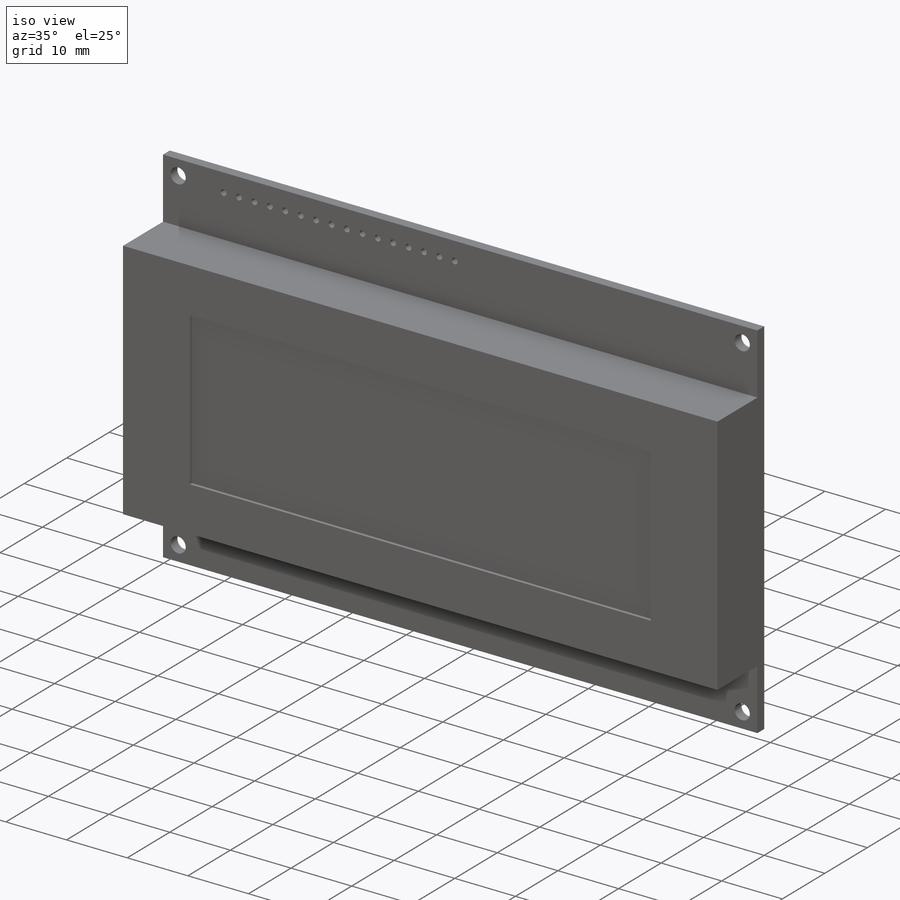
[diagram: iso view]
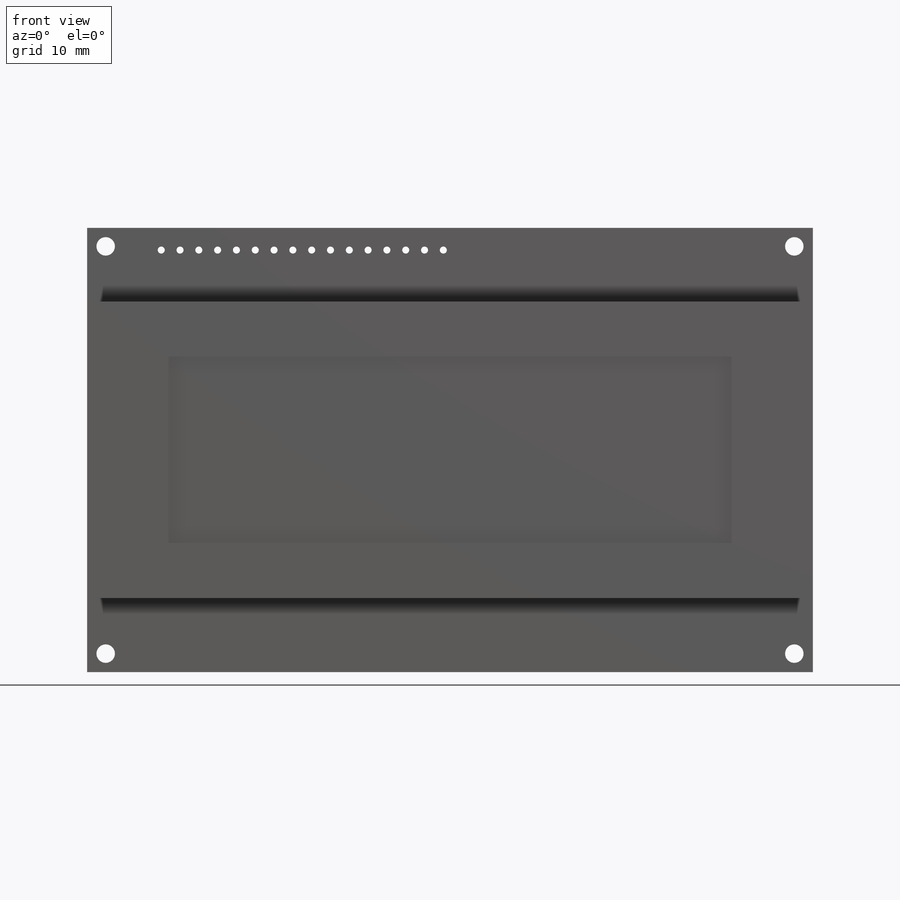
[diagram: front view]
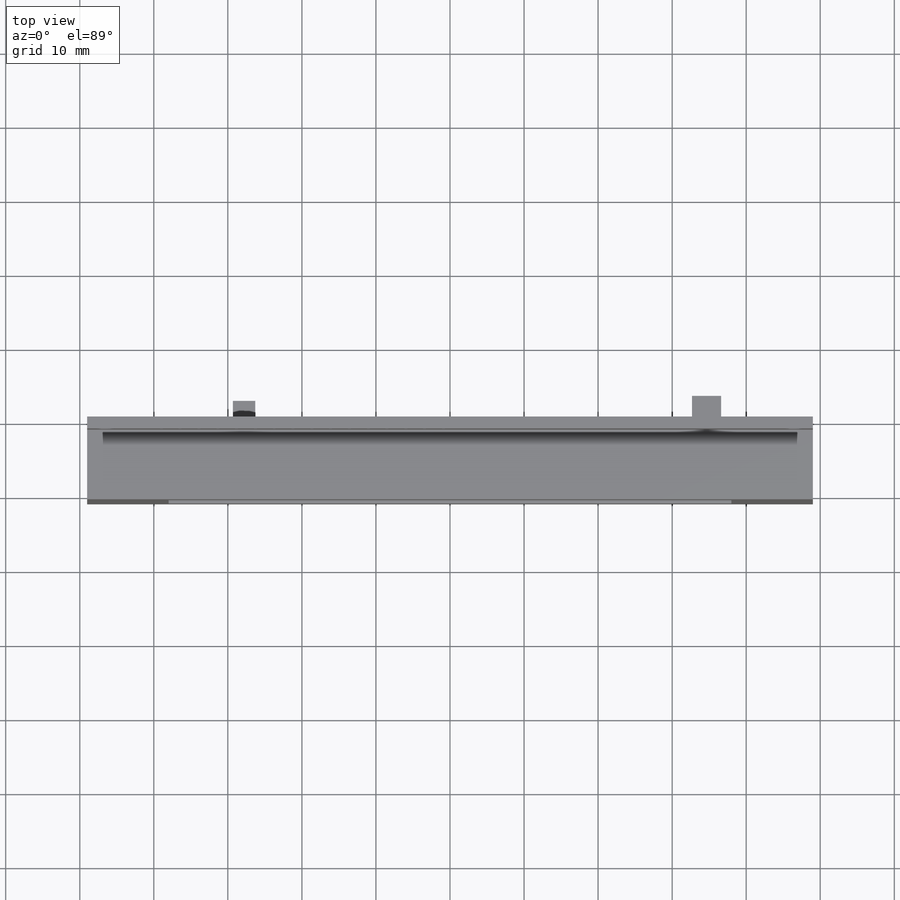
[diagram: top view]
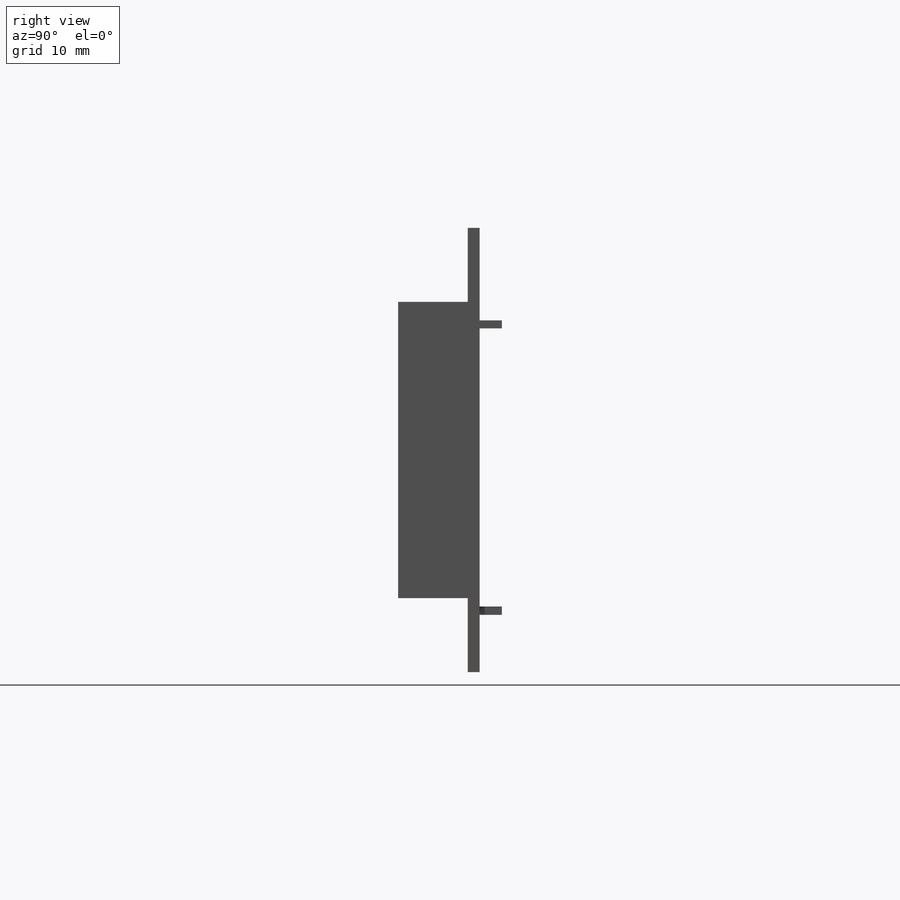
[diagram: right view]
SOLIDWORKS PART (.sldprt)
format: sldprt  version: not decoded by parser v0  size: 304,640 bytes
history: native  units: mm
features: sketch x10, extrude x3, cut_extrude x3, hole x2, material x1, plane x1 (+13 scaffold rows collapsed)
feature tree (33):
  scaffold x13  (default folders/planes/origin — collapsed)
  material  "Material <not specified>"
  plane  "Plane1"  Offset=11mm
  sketch  "Sketch1"
  extrude  "Boss-Extrude1"  Depth=11mm
  sketch  "Sketch2"
  cut_extrude  "Cut-Extrude1"  Depth=98mm
  sketch  "Sketch3"
  cut_extrude  "Cut-Extrude2"  Depth=98mm
  sketch  "Sketch4"
  extrude  "Boss-Extrude2"  Depth=3mm
  sketch  "Sketch5"
  extrude  "Boss-Extrude3"  Depth=3mm
  sketch  "Sketch6"
  cut_extrude  "Cut-Extrude3"  Depth=0.5mm
  hole  "Ø2.5 (2.5) Diameter Hole1"  Diameter=2.5mm Depth=11mm
  sketch  "Sketch8"
  sketch  "Sketch7"  dims[hole-wizard template sketch: 60 standard entries collapsed; hole parameters kept: c18.Thru Hole Depth=11.0mm]
  hole  "Ø0.95 (0.95) Diameter Hole1"  Diameter=0.95mm Depth=11mm
  sketch  "Sketch10"
  sketch  "Sketch9"  dims[hole-wizard template sketch: 59 standard entries collapsed; hole parameters kept: c18.Thru Hole Dia.=0.95mm c18.Thru Hole Depth=11.0mm]
decode coverage: 10 of 18 modeling features carry decoded parameters
note: ~ marks probable driven/reference dimensions
note: suppression state not decoded; provenance and decode notes live in map.json
